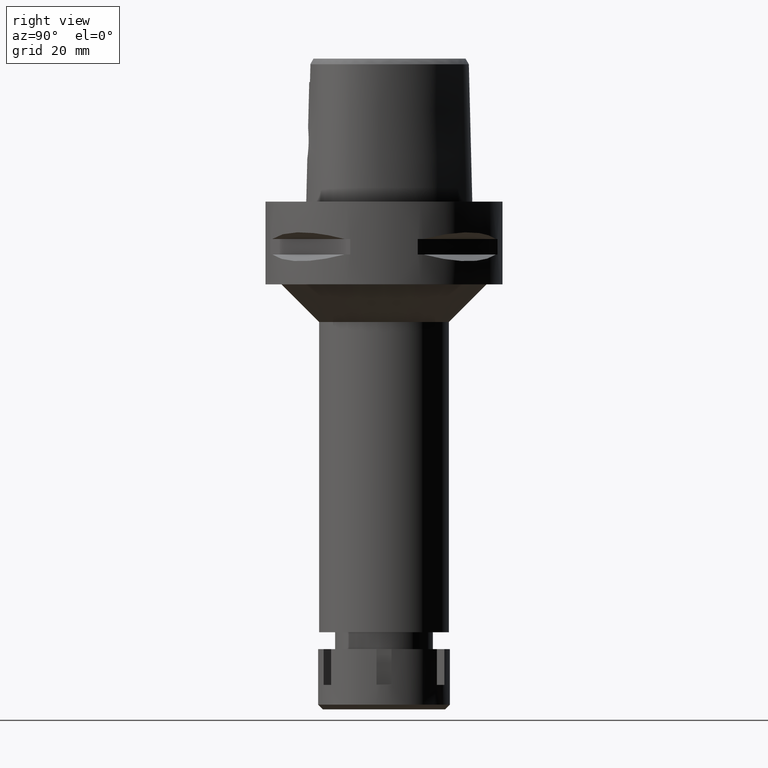
[diagram: clean part render]
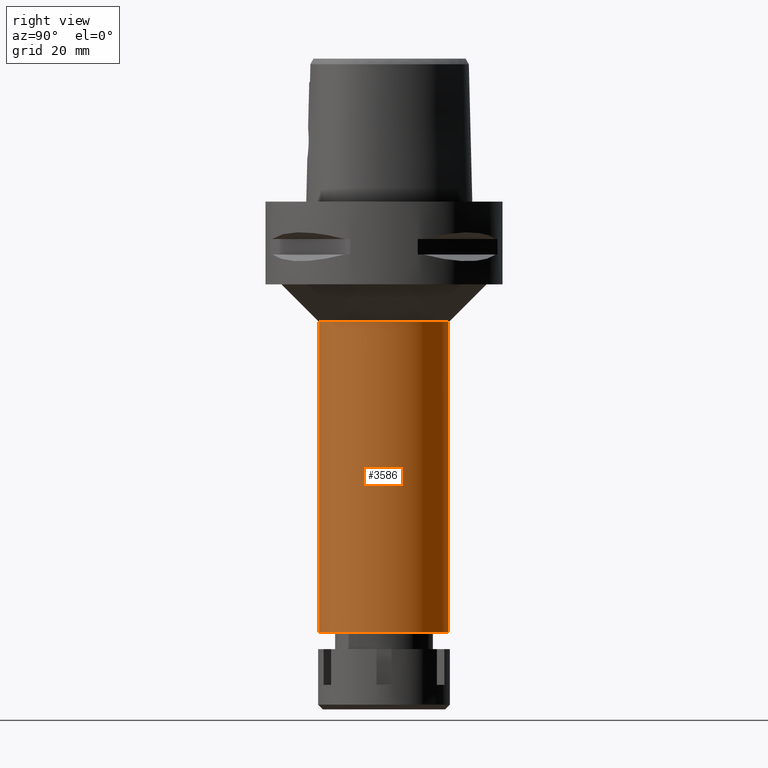
[diagram: same view with one face highlighted and labeled with its STEP entity id]
A machine part, right view. The second image highlights one B-rep face of the part: STEP entity #3586.
In plain terms, the highlighted cylindrical surface (partial cylindrical patch) has radius 17.25 mm, axis along (0, 0, -1).
Its self-contained STEP definition (entity closure, byte-faithful):
#3 = DIRECTION ( 'NONE',  ( 0.0000000000000000000, -1.000000000000000000, 0.0000000000000000000 ) ) ;
#156 = ORIENTED_EDGE ( 'NONE', *, *, #1584, .T. ) ;
#185 = CARTESIAN_POINT ( 'NONE',  ( 0.0000000000000000000, -17.25000000000000000, -114.5000000000000000 ) ) ;
#324 = AXIS2_PLACEMENT_3D ( 'NONE', #3055, #2634, #2177 ) ;
#361 = CIRCLE ( 'NONE', #3092, 17.25000000000000000 ) ;
#387 = CARTESIAN_POINT ( 'NONE',  ( 0.0000000000000000000, 1.302411870892999789E-14, 6.349999999999999645 ) ) ;
#653 = LINE ( 'NONE', #764, #2335 ) ;
#758 = CARTESIAN_POINT ( 'NONE',  ( 0.0000000000000000000, 17.25000000000000000, -32.00000000000000000 ) ) ;
#764 = CARTESIAN_POINT ( 'NONE',  ( 0.0000000000000000000, 17.25000000000000000, -32.00000000000000000 ) ) ;
#820 = ORIENTED_EDGE ( 'NONE', *, *, #5483, .T. ) ;
#1115 = DIRECTION ( 'NONE',  ( 0.0000000000000000000, 0.0000000000000000000, -1.000000000000000000 ) ) ;
#1357 = DIRECTION ( 'NONE',  ( 0.0000000000000000000, 0.0000000000000000000, 1.000000000000000000 ) ) ;
#1584 = EDGE_CURVE ( 'NONE', #4802, #2502, #361, .T. ) ;
#1657 = FACE_OUTER_BOUND ( 'NONE', #2292, .T. ) ;
#1738 = DIRECTION ( 'NONE',  ( 0.0000000000000000000, 0.0000000000000000000, -1.000000000000000000 ) ) ;
#2156 = VECTOR ( 'NONE', #1738, 1000.000000000000000 ) ;
#2177 = DIRECTION ( 'NONE',  ( 0.0000000000000000000, 1.000000000000000000, 0.0000000000000000000 ) ) ;
#2292 = EDGE_LOOP ( 'NONE', ( #3286, #820, #156, #3579 ) ) ;
#2335 = VECTOR ( 'NONE', #1115, 1000.000000000000000 ) ;
#2502 = VERTEX_POINT ( 'NONE', #4292 ) ;
#2576 = VERTEX_POINT ( 'NONE', #2754 ) ;
#2634 = DIRECTION ( 'NONE',  ( 0.0000000000000000000, 0.0000000000000000000, -1.000000000000000000 ) ) ;
#2754 = CARTESIAN_POINT ( 'NONE',  ( 0.0000000000000000000, -17.25000000000000000, -32.00000000000000000 ) ) ;
#2779 = CIRCLE ( 'NONE', #324, 17.25000000000000000 ) ;
#2883 = AXIS2_PLACEMENT_3D ( 'NONE', #387, #4600, #4625 ) ;
#2940 = VERTEX_POINT ( 'NONE', #758 ) ;
#3037 = CARTESIAN_POINT ( 'NONE',  ( 0.0000000000000000000, -17.25000000000000000, -32.00000000000000000 ) ) ;
#3055 = CARTESIAN_POINT ( 'NONE',  ( 0.0000000000000000000, 0.0000000000000000000, -32.00000000000000000 ) ) ;
#3092 = AXIS2_PLACEMENT_3D ( 'NONE', #4368, #1357, #3 ) ;
#3286 = ORIENTED_EDGE ( 'NONE', *, *, #4008, .T. ) ;
#3579 = ORIENTED_EDGE ( 'NONE', *, *, #4373, .F. ) ;
#3586 = ADVANCED_FACE ( 'NONE', ( #1657 ), #5526, .T. ) ;
#4008 = EDGE_CURVE ( 'NONE', #2940, #2576, #2779, .T. ) ;
#4292 = CARTESIAN_POINT ( 'NONE',  ( 0.0000000000000000000, 17.25000000000000000, -114.5000000000000000 ) ) ;
#4322 = LINE ( 'NONE', #3037, #2156 ) ;
#4368 = CARTESIAN_POINT ( 'NONE',  ( 0.0000000000000000000, 1.302411870892999789E-14, -114.5000000000000000 ) ) ;
#4373 = EDGE_CURVE ( 'NONE', #2940, #2502, #653, .T. ) ;
#4600 = DIRECTION ( 'NONE',  ( 0.0000000000000000000, 0.0000000000000000000, -1.000000000000000000 ) ) ;
#4625 = DIRECTION ( 'NONE',  ( 0.0000000000000000000, -1.000000000000000000, 0.0000000000000000000 ) ) ;
#4802 = VERTEX_POINT ( 'NONE', #185 ) ;
#5483 = EDGE_CURVE ( 'NONE', #2576, #4802, #4322, .T. ) ;
#5526 = CYLINDRICAL_SURFACE ( 'NONE', #2883, 17.25000000000000000 ) ;